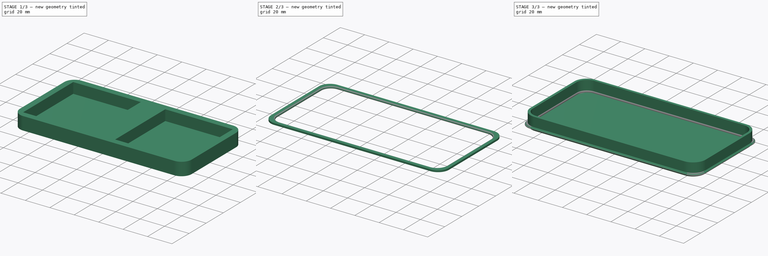
[diagram: build sequence overview — one tinted view per stage of 3, left to right]
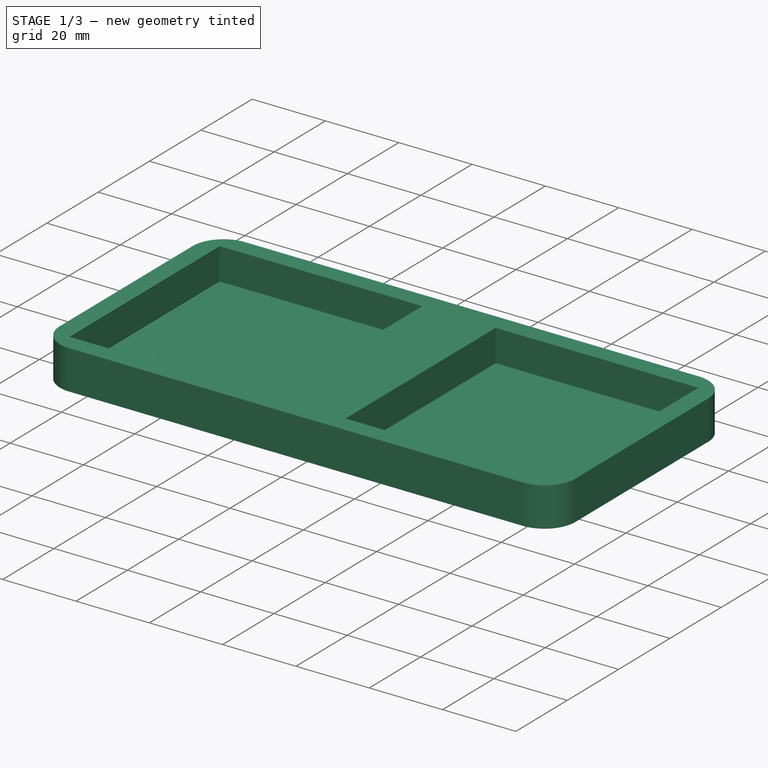
[diagram: stage 1 of 3 — iso view after this stage's code; geometry added in this stage tinted green]
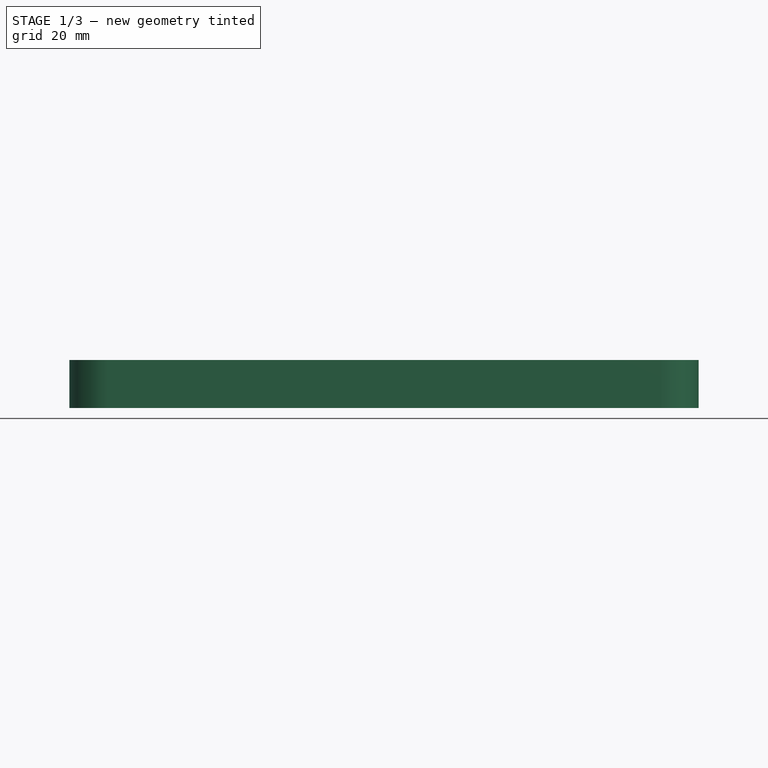
[diagram: stage 1 of 3 — front view after this stage's code; geometry added in this stage tinted green]
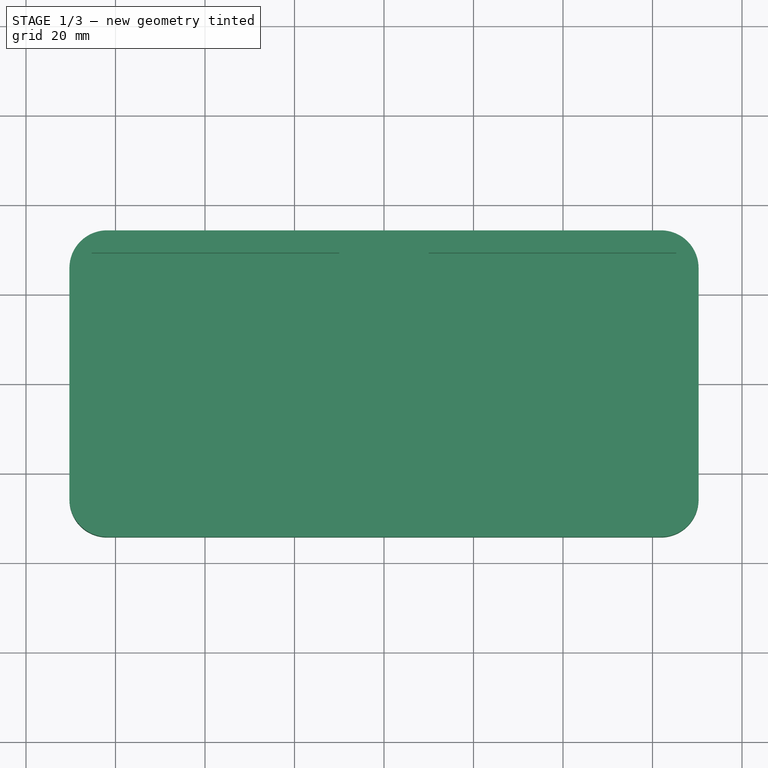
[diagram: stage 1 of 3 — top view after this stage's code; geometry added in this stage tinted green]
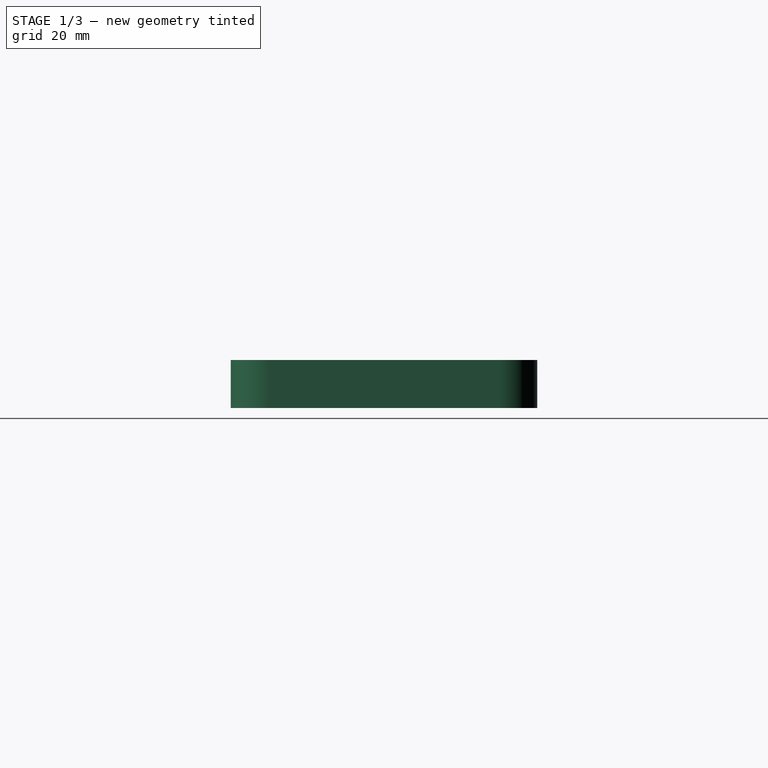
[diagram: stage 1 of 3 — right view after this stage's code; geometry added in this stage tinted green]
FCSTD DOCUMENT  (FreeCAD 0.20R29177 +426 (Git))
Label: phone_case_in_sections
License: Creative Commons Attribution
LicenseURL: http://creativecommons.org/licenses/by/3.0/
objects: Sketcher::SketchObject×4, PartDesign::Pad×3, PartDesign::Body×3, PartDesign::AdditivePipe×1, PartDesign::Fillet×1, PartDesign::Chamfer×1
note: 19 computed .brp shape members not serialized (recipe doc carries the construction recipe); baked Part::Feature solids carry a one-line shape summary decoded from their .brp

FEATURE [Sketcher::SketchObject] Sketch  label="device_support_sketch"
  FullyConstrained = true
  MapMode = 5
  Support = -> [XY_Plane]
  expr: Constraints[37] = .Constraints.device_lip_support
  sketch-geometry (16):
    g0: LineSegment StartX=-61.89 StartY=34.25 StartZ=0 EndX=61.89 EndY=34.25 EndZ=0
    g1: LineSegment StartX=70.3 StartY=25.84 StartZ=0 EndX=70.3 EndY=-25.84 EndZ=0
    g2: LineSegment StartX=61.89 StartY=-34.25 StartZ=0 EndX=-61.89 EndY=-34.25 EndZ=0
    g3: LineSegment StartX=-70.3 StartY=-25.84 StartZ=0 EndX=-70.3 EndY=25.84 EndZ=0
    g4: ArcOfCircle CenterX=-61.89 CenterY=25.84 CenterZ=0 NormalX=0 NormalY=0 NormalZ=1 AngleXU=0 Radius=8.41 StartAngle=1.5708 EndAngle=3.14159
    g5: ArcOfCircle CenterX=61.89 CenterY=25.84 CenterZ=0 NormalX=0 NormalY=0 NormalZ=1 AngleXU=0 Radius=8.41 StartAngle=0 EndAngle=1.5708
    g6: ArcOfCircle CenterX=61.89 CenterY=-25.84 CenterZ=0 NormalX=0 NormalY=0 NormalZ=1 AngleXU=0 Radius=8.41 StartAngle=4.71239 EndAngle=6.28319
    g7: ArcOfCircle CenterX=-61.89 CenterY=-25.84 CenterZ=0 NormalX=0 NormalY=0 NormalZ=1 AngleXU=0 Radius=8.41 StartAngle=3.14159 EndAngle=4.71239
    g8: LineSegment StartX=-65.3 StartY=29.25 StartZ=0 EndX=-10 EndY=29.25 EndZ=0
    g9: LineSegment StartX=-10 StartY=29.25 StartZ=0 EndX=-10 EndY=-29.25 EndZ=0
    g10: LineSegment StartX=-10 StartY=-29.25 StartZ=0 EndX=-65.3 EndY=-29.25 EndZ=0
    g11: LineSegment StartX=-65.3 StartY=-29.25 StartZ=0 EndX=-65.3 EndY=29.25 EndZ=0
    g12: LineSegment StartX=10 StartY=29.25 StartZ=0 EndX=65.3 EndY=29.25 EndZ=0
    g13: LineSegment StartX=65.3 StartY=29.25 StartZ=0 EndX=65.3 EndY=-29.25 EndZ=0
    g14: LineSegment StartX=65.3 StartY=-29.25 StartZ=0 EndX=10 EndY=-29.25 EndZ=0
    g15: LineSegment StartX=10 StartY=-29.25 StartZ=0 EndX=10 EndY=29.25 EndZ=0
  constraints (39):
    c: Horizontal(g0)
    c: Horizontal(g2)
    c: Vertical(g1)
    c: Vertical(g3)
    c: Tangent(g0,g4) = 1.5708
    c: Tangent(g3,g4) = 1.5708
    c: Tangent(g0,g5) = 1.5708
    c: Tangent(g1,g5) = 1.5708
    c: Tangent(g1,g6) = 1.5708
    c: Tangent(g2,g6) = 1.5708
    c: Tangent(g2,g7) = 1.5708
    c: Tangent(g3,g7) = 1.5708
    c: Equal(g0,g2)
    c: Symmetric(g0,g2,g-1)
    c: Symmetric(g3,g1,g-2)
    c: DistanceX(g3,g1) = 140.6  'device_heigth'
    c: Radius(g4) = 8.41  'device_corner_radius'
    c: DistanceY(g2,g0) = 68.5  'device_width'
    c: Coincident(g8,g9)
    c: Coincident(g9,g10)
    c: Coincident(g10,g11)
    c: Coincident(g11,g8)
    c: Horizontal(g8)
    c: Horizontal(g10)
    c: Vertical(g9)
    c: Coincident(g12,g13)
    c: Coincident(g13,g14)
    c: Coincident(g14,g15)
    c: Coincident(g15,g12)
    c: Horizontal(g12)
    c: Horizontal(g14)
    c: Vertical(g15)
    c: Equal(g8,g12)
    c: Symmetric(g8,g10,g-1)
    c: Symmetric(g12,g13,g-1)
    c: Symmetric(g8,g12,g-2)
    c: DistanceX(g3,g10) = 5  'device_lip_support'
    c: DistanceY(g2,g10) = 5
    c: DistanceX(g8,g12) = 20  'device_center_support'
FEATURE [PartDesign::Pad] Pad  label="device_support_pad"
  Direction = (0,0,1)
  Length = 8.7
  Length2 = 10
  Profile = -> Sketch
  ReferenceAxis = -> Sketch [N_Axis]
  Type = 0
FEATURE [PartDesign::Body] Body  label="device_support"
  Group = -> [Sketch,Pad]
  Origin = -> Origin
  Tip = -> Pad
FEATURE [Sketcher::SketchObject] Sketch001  label="case_base_sketch"
  FullyConstrained = true
  MapMode = 5
  Support = -> [XY_Plane001]
  expr: Constraints[12] = <<device_support_sketch>>.Constraints.device_corner_radius
  expr: Constraints[16] = <<device_support_sketch>>.Constraints.device_heigth
  expr: Constraints[17] = <<device_support_sketch>>.Constraints.device_width
  sketch-geometry (8):
    g0: LineSegment StartX=-61.89 StartY=34.25 StartZ=0 EndX=61.89 EndY=34.25 EndZ=0
    g1: LineSegment StartX=70.3 StartY=25.84 StartZ=0 EndX=70.3 EndY=-25.84 EndZ=0
    g2: LineSegment StartX=61.89 StartY=-34.25 StartZ=0 EndX=-61.89 EndY=-34.25 EndZ=0
    g3: LineSegment StartX=-70.3 StartY=-25.84 StartZ=0 EndX=-70.3 EndY=25.84 EndZ=0
    g4: ArcOfCircle CenterX=-61.89 CenterY=25.84 CenterZ=0 NormalX=0 NormalY=0 NormalZ=1 AngleXU=0 Radius=8.41 StartAngle=1.5708 EndAngle=3.14159
    g5: ArcOfCircle CenterX=61.89 CenterY=25.84 CenterZ=0 NormalX=0 NormalY=0 NormalZ=1 AngleXU=0 Radius=8.41 StartAngle=0 EndAngle=1.5708
    g6: ArcOfCircle CenterX=61.89 CenterY=-25.84 CenterZ=0 NormalX=0 NormalY=0 NormalZ=1 AngleXU=0 Radius=8.41 StartAngle=4.71239 EndAngle=6.28319
    g7: ArcOfCircle CenterX=-61.89 CenterY=-25.84 CenterZ=0 NormalX=0 NormalY=0 NormalZ=1 AngleXU=0 Radius=8.41 StartAngle=3.14159 EndAngle=4.71239
  constraints (18):
    c: Horizontal(g0)
    c: Horizontal(g2)
    c: Vertical(g1)
    c: Vertical(g3)
    c: Tangent(g0,g4) = 1.5708
    c: Tangent(g3,g4) = 1.5708
    c: Tangent(g0,g5) = 1.5708
    c: Tangent(g1,g5) = 1.5708
    c: Tangent(g1,g6) = 1.5708
    c: Tangent(g2,g6) = 1.5708
    c: Tangent(g2,g7) = 1.5708
    c: Tangent(g3,g7) = 1.5708
    c: Radius(g4) = 8.41
    c: Equal(g6,g7)
    c: Symmetric(g1,g3,g-2)
    c: Symmetric(g0,g2,g-1)
    c: DistanceX(g3,g1) = 140.6
    c: DistanceY(g2,g0) = 68.5
FEATURE [PartDesign::Pad] Pad001  label="case_base_pad"
  Direction = (0,0,1)
  Length = 2
  Length2 = 10
  Profile = -> Sketch001
  ReferenceAxis = -> Sketch001 [N_Axis]
  Reversed = true
  Type = 0
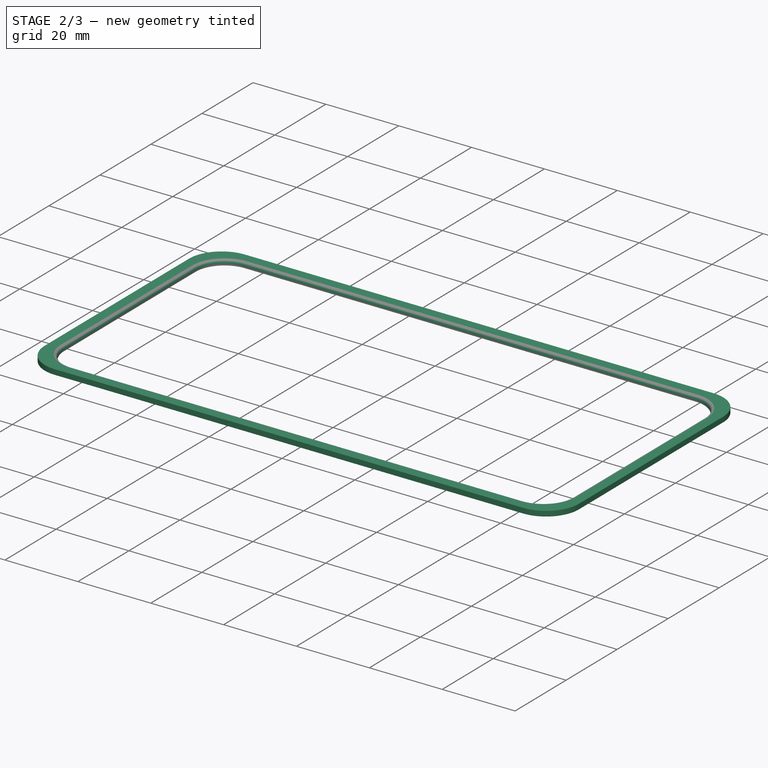
[diagram: stage 2 of 3 — iso view after this stage's code; geometry added in this stage tinted green]
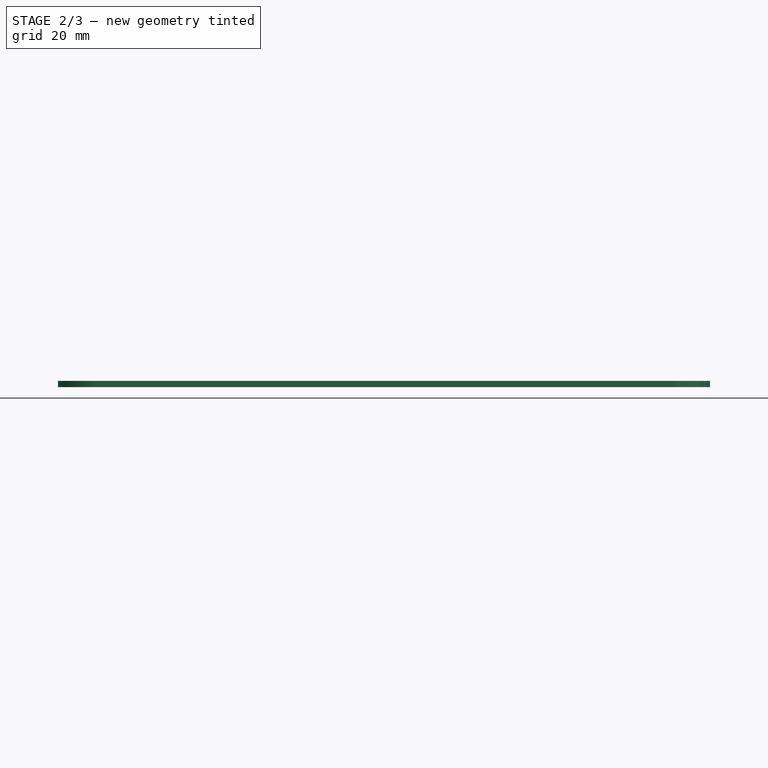
[diagram: stage 2 of 3 — front view after this stage's code; geometry added in this stage tinted green]
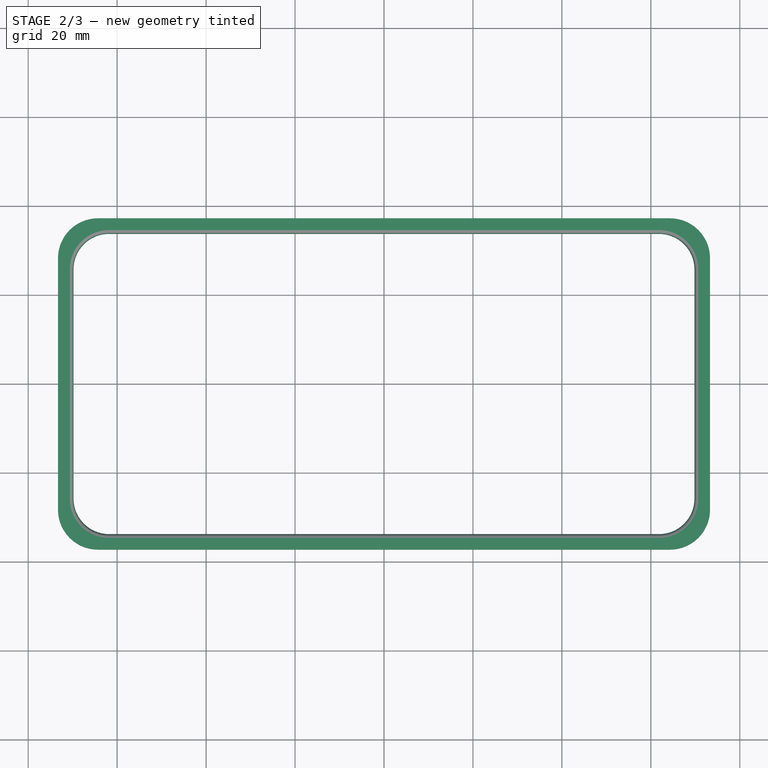
[diagram: stage 2 of 3 — top view after this stage's code; geometry added in this stage tinted green]
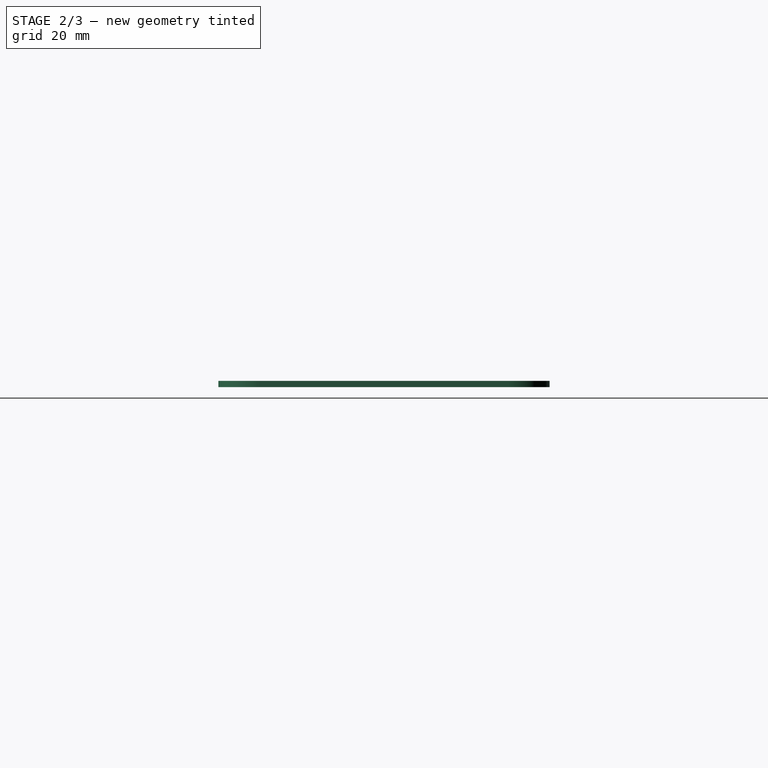
[diagram: stage 2 of 3 — right view after this stage's code; geometry added in this stage tinted green]
FEATURE [PartDesign::Body] Body001  label="case"
  Group = -> [Sketch001,Pad001,Sketch002,AdditivePipe]
  Origin = -> Origin001
  Tip = -> AdditivePipe
FEATURE [Sketcher::SketchObject] Sketch003  label="case_lip_sketch"
  FullyConstrained = true
  MapMode = 5
  Support = -> [XY_Plane002]
  expr: .Constraints.case_side_thickness = <<case_edge_sketch>>.Constraints.case_side_thickness
  expr: .Constraints.device_corner_radius = <<device_support_sketch>>.Constraints.device_corner_radius
  expr: .Constraints.device_height = <<device_support_sketch>>.Constraints.device_heigth + <<case_edge_sketch>>.Constraints.case_side_thickness
  expr: .Constraints.device_width = <<device_support_sketch>>.Constraints.device_width + <<case_edge_sketch>>.Constraints.case_side_thickness
  expr: Constraints[33] = .Constraints.case_lip
  expr: Constraints[34] = .Constraints.case_lip
  expr: Constraints[36] = .Constraints.case_lip
  expr: Constraints[52] = .Constraints.case_side_thickness
  expr: Constraints[53] = .Constraints.case_side_thickness
  expr: Constraints[54] = .Constraints.case_side_thickness
  sketch-geometry (24):
    g0: LineSegment StartX=-62.89 StartY=35.25 StartZ=0 EndX=62.89 EndY=35.25 EndZ=0
    g1: LineSegment StartX=71.3 StartY=26.84 StartZ=0 EndX=71.3 EndY=-26.84 EndZ=0
    g2: LineSegment StartX=62.89 StartY=-35.25 StartZ=0 EndX=-62.89 EndY=-35.25 EndZ=0
    g3: LineSegment StartX=-71.3 StartY=-26.84 StartZ=0 EndX=-71.3 EndY=26.84 EndZ=0
    g4: ArcOfCircle CenterX=-62.89 CenterY=26.84 CenterZ=0 NormalX=0 NormalY=0 NormalZ=1 AngleXU=0 Radius=8.41 StartAngle=1.5708 EndAngle=3.14159
    g5: ArcOfCircle CenterX=62.89 CenterY=26.84 CenterZ=0 NormalX=0 NormalY=0 NormalZ=1 AngleXU=0 Radius=8.41 StartAngle=0 EndAngle=1.5708
    g6: ArcOfCircle CenterX=62.89 CenterY=-26.84 CenterZ=0 NormalX=0 NormalY=0 NormalZ=1 AngleXU=0 Radius=8.41 StartAngle=4.71239 EndAngle=6.28319
    g7: ArcOfCircle CenterX=-62.89 CenterY=-26.84 CenterZ=0 NormalX=0 NormalY=0 NormalZ=1 AngleXU=0 Radius=8.41 StartAngle=3.14159 EndAngle=4.71239
    g8: LineSegment StartX=-61.8293 StartY=33.75 StartZ=0 EndX=61.8293 EndY=33.75 EndZ=0
    g9: LineSegment StartX=69.8 StartY=25.7793 StartZ=0 EndX=69.8 EndY=-25.7793 EndZ=0
    g10: LineSegment StartX=61.8293 StartY=-33.75 StartZ=0 EndX=-61.8293 EndY=-33.75 EndZ=0
    g11: LineSegment StartX=-69.8 StartY=-25.7793 StartZ=0 EndX=-69.8 EndY=25.7793 EndZ=0
    g12: ArcOfCircle CenterX=-61.8293 CenterY=25.7793 CenterZ=0 NormalX=0 NormalY=0 NormalZ=1 AngleXU=0 Radius=7.97066 StartAngle=1.5708 EndAngle=3.14159
    g13: ArcOfCircle CenterX=61.8293 CenterY=25.7793 CenterZ=0 NormalX=0 NormalY=0 NormalZ=1 AngleXU=0 Radius=7.97066 StartAngle=0 EndAngle=1.5708
    g14: ArcOfCircle CenterX=61.8293 CenterY=-25.7793 CenterZ=0 NormalX=0 NormalY=0 NormalZ=1 AngleXU=0 Radius=7.97066 StartAngle=4.71239 EndAngle=6.28319
    g15: ArcOfCircle CenterX=-61.8293 CenterY=-25.7793 CenterZ=0 NormalX=0 NormalY=0 NormalZ=1 AngleXU=0 Radius=7.97066 StartAngle=3.14159 EndAngle=4.71239
    g16: LineSegment StartX=-64.3042 StartY=37.25 StartZ=0 EndX=64.3042 EndY=37.25 EndZ=0
    g17: LineSegment StartX=73.3 StartY=28.2542 StartZ=0 EndX=73.3 EndY=-28.2542 EndZ=0
    g18: LineSegment StartX=64.3042 StartY=-37.25 StartZ=0 EndX=-64.3042 EndY=-37.25 EndZ=0
    g19: LineSegment StartX=-73.3 StartY=-28.2542 StartZ=0 EndX=-73.3 EndY=28.2542 EndZ=0
    g20: ArcOfCircle CenterX=-64.3042 CenterY=28.2542 CenterZ=0 NormalX=0 NormalY=0 NormalZ=1 AngleXU=0 Radius=8.99579 StartAngle=1.5708 EndAngle=3.14159
    g21: ArcOfCircle CenterX=64.3042 CenterY=28.2542 CenterZ=0 NormalX=0 NormalY=0 NormalZ=1 AngleXU=0 Radius=8.99579 StartAngle=0 EndAngle=1.5708
    g22: ArcOfCircle CenterX=64.3042 CenterY=-28.2542 CenterZ=0 NormalX=0 NormalY=0 NormalZ=1 AngleXU=0 Radius=8.99579 StartAngle=4.71239 EndAngle=6.28319
    g23: ArcOfCircle CenterX=-64.3042 CenterY=-28.2542 CenterZ=0 NormalX=0 NormalY=0 NormalZ=1 AngleXU=0 Radius=8.99579 StartAngle=3.14159 EndAngle=4.71239
  constraints (56):
    c: Horizontal(g2)
    c: Vertical(g1)
    c: Vertical(g3)
    c: Tangent(g0,g4) = 1.5708
    c: Tangent(g3,g4) = 1.5708
    c: Tangent(g0,g5) = 1.5708
    c: Tangent(g1,g5) = 1.5708
    c: Tangent(g1,g6) = 1.5708
    c: Tangent(g2,g6) = 1.5708
    c: Tangent(g2,g7) = 1.5708
    c: Tangent(g3,g7) = 1.5708
    c: Equal(g0,g2)
    c: Equal(g1,g3)
    c: Symmetric(g0,g0,g-2)
    c: Symmetric(g2,g0,g-1)
    c: DistanceX(g3,g1) = 142.6  'device_height'
    c: DistanceY(g2,g0) = 70.5  'device_width'
    c: Radius(g4) = 8.41  'device_corner_radius'
    c: Horizontal(g8)
    c: Horizontal(g10)
    c: Vertical(g9)
    c: Vertical(g11)
    c: Tangent(g8,g12) = 1.5708
    c: Tangent(g11,g12) = 1.5708
    c: Tangent(g8,g13) = 1.5708
    c: Tangent(g9,g13) = 1.5708
    c: Tangent(g9,g14) = 1.5708
    c: Tangent(g10,g14) = 1.5708
    c: Tangent(g10,g15) = 1.5708
    c: Tangent(g11,g15) = 1.5708
    c: Equal(g8,g10)
    c: Equal(g9,g11)
    c: DistanceX(g3,g11) = 1.5  'case_lip'
    c: DistanceY(g8,g0) = 1.5
    c: DistanceY(g2,g10) = 1.5
    c: Symmetric(g15,g14,g-2)  'inner Symetry'
    c: Distance(g4,g12) = 1.5
    c: Horizontal(g16)
    c: Horizontal(g18)
    c: Vertical(g17)
    c: Vertical(g19)
    c: Tangent(g16,g20) = 1.5708
    c: Tangent(g19,g20) = 1.5708
    c: Tangent(g16,g21) = 1.5708
    c: Tangent(g17,g21) = 1.5708
    c: Tangent(g17,g22) = 1.5708
    c: Tangent(g18,g22) = 1.5708
    c: Tangent(g18,g23) = 1.5708
    c: Tangent(g19,g23) = 1.5708
    c: Equal(g16,g18)
    c: Equal(g19,g17)
    c: DistanceX(g19,g3) = 2  'case_side_thickness'
    c: DistanceY(g0,g16) = 2
    c: DistanceY(g18,g2) = 2
    c: Distance(g20,g4) = 2
    c: Symmetric(g22,g23,g-2)  'Outer Symetry'
FEATURE [PartDesign::Pad] Pad002  label="case_lip_pad"
  Direction = (0,0,1)
  Length = 1.4
  Length2 = 10
  Profile = -> Sketch003
  ReferenceAxis = -> Sketch003 [N_Axis]
  Type = 0
FEATURE [PartDesign::Fillet] Fillet  label="case_lip_inner_fillet"
  Base = -> Pad002 [Edge34,Edge31,Edge28,Edge48,Edge46,Edge43,Edge40,Edge37]
  BaseFeature = -> Pad002
  Radius = 1
  SupportTransform = false
  UseAllEdges = false
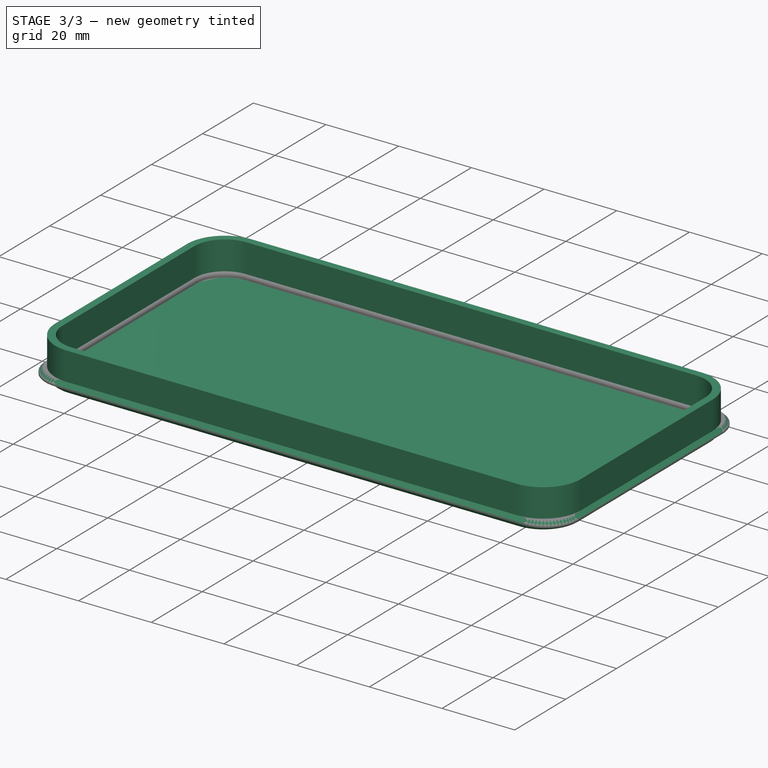
[diagram: stage 3 of 3 — iso view after this stage's code; geometry added in this stage tinted green]
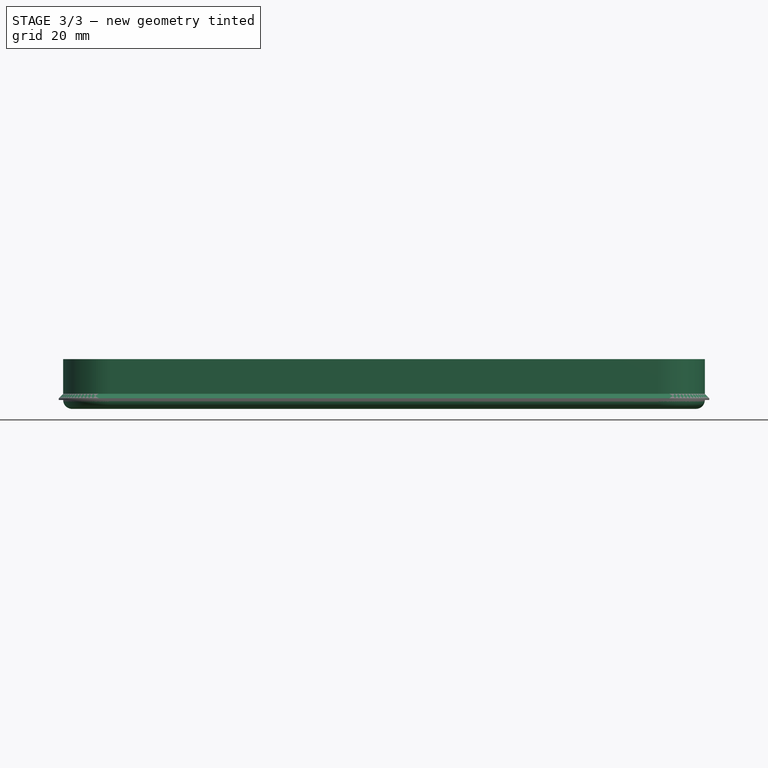
[diagram: stage 3 of 3 — front view after this stage's code; geometry added in this stage tinted green]
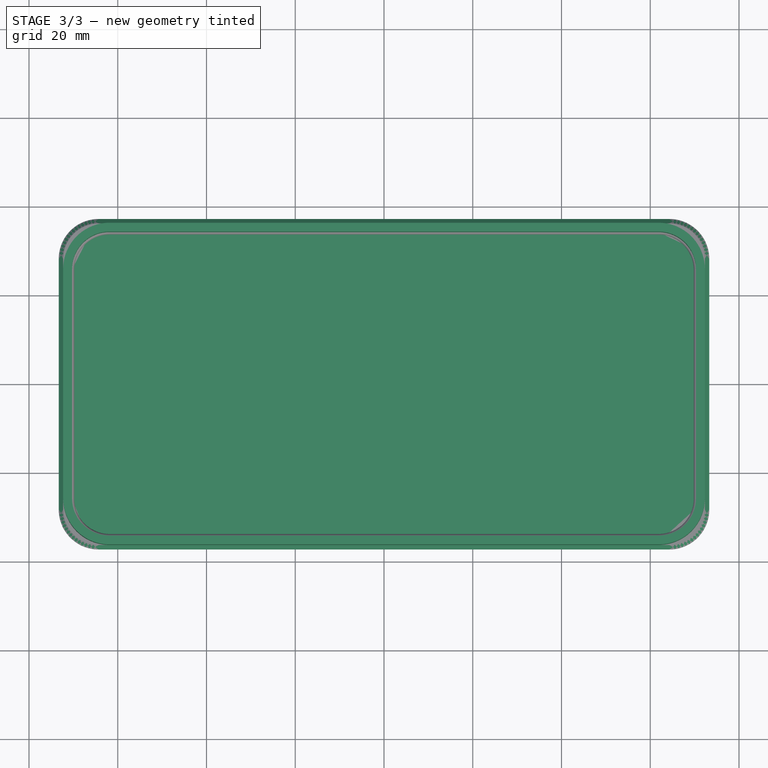
[diagram: stage 3 of 3 — top view after this stage's code; geometry added in this stage tinted green]
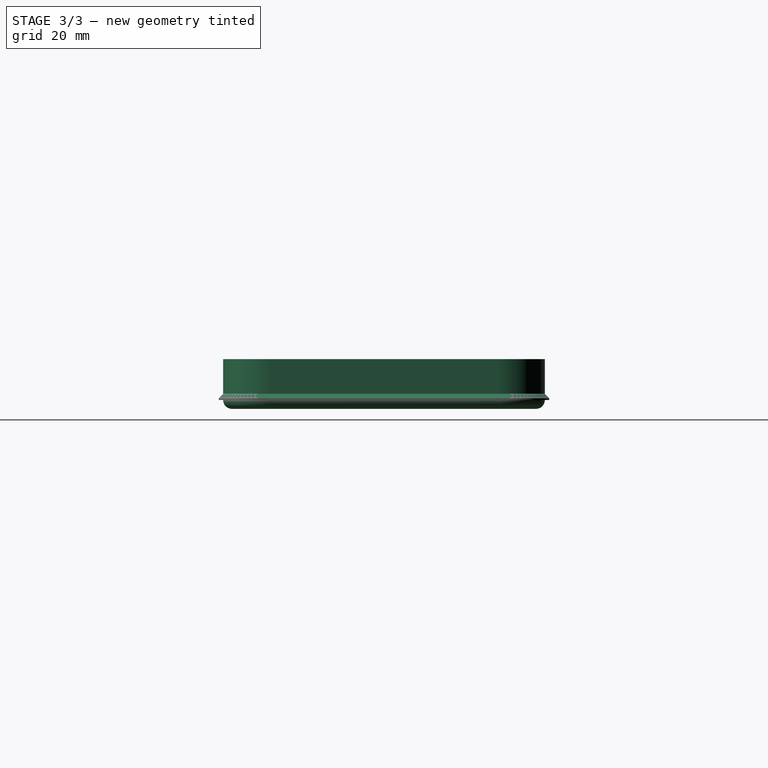
[diagram: stage 3 of 3 — right view after this stage's code; geometry added in this stage tinted green]
FEATURE [Sketcher::SketchObject] Sketch002  label="case_edge_sketch"
  ExternalGeometry = -> [Pad001]
  FullyConstrained = true
  MapMode = 5
  Placement = pos=(0,0,0) rot=(1,0,0;1.5708rad)
  Support = -> [XZ_Plane001]
  expr: .Constraints.case_base_pad_Length = <<case_base_pad>>.Length
  expr: .Constraints.case_side_thickness = .Constraints.case_base_pad_Length
  expr: .Constraints.device_support_pad_Length = <<device_support_pad>>.Length + 0.5mm
  sketch-geometry (5):
    g0: LineSegment StartX=-70.3 StartY=9.2 StartZ=0 EndX=-70.3 EndY=-5.3e-15 EndZ=0
    g1: LineSegment StartX=-70.3 StartY=-5.3e-15 StartZ=0 EndX=-70.3 EndY=-2 EndZ=0
    g2: LineSegment StartX=-70.3 StartY=9.2 StartZ=0 EndX=-72.3 EndY=9.2 EndZ=0
    g3: LineSegment StartX=-72.3 StartY=9.2 StartZ=0 EndX=-72.3 EndY=-9.06e-14 EndZ=0
    g4: ArcOfCircle CenterX=-70.3 CenterY=-9.18e-14 CenterZ=0 NormalX=0 NormalY=0 NormalZ=1 AngleXU=0 Radius=2 StartAngle=3.14159 EndAngle=4.71239
  constraints (15):
    c: Vertical(g0)
    c: Coincident(g1,g0)
    c: Vertical(g1)
    c: DistanceY(g0,g0) = 9.2  'device_support_pad_Length'
    c: DistanceY(g1,g1) = 2  'case_base_pad_Length'
    c: Coincident(g1,g-3)  'base_attachment_point'
    c: Coincident(g2,g0)
    c: Horizontal(g2)
    c: Coincident(g3,g2)
    c: Vertical(g3)
    c: DistanceX(g2,g2) = 2  'case_side_thickness'
    c: Coincident(g4,g1)
    c: Coincident(g3,g4)
    c: Angle(g4) = 1.5708  'case_base_arc'
    c: Equal(g3,g0)  'case_edge_outer_height'
FEATURE [PartDesign::AdditivePipe] AdditivePipe  label="case_edge_pipe"
  AuxilleryCurvelinear = true
  AuxillerySpineTangent = false
  BaseFeature = -> Pad001
  Binormal = (0,0,0)
  Mode = 0
  Profile = -> Sketch002
  Spine = -> Pad001 [Edge23,Edge3,Edge6,Edge9,Edge12,Edge15,Edge18,Edge21]
  SpineTangent = false
  Transformation = 0
  Transition = 0
FEATURE [PartDesign::Chamfer] Chamfer  label="case_lip_outer_chamfer"
  Angle = 45
  Base = -> Fillet [Edge39,Edge40,Edge41,Edge42,Edge43,Edge44,Edge37,Edge38]
  BaseFeature = -> Fillet
  ChamferType = 0
  FlipDirection = false
  Size = 1
  Size2 = 1
  SupportTransform = false
  UseAllEdges = false
FEATURE [PartDesign::Body] Body002  label="case_lip"
  Group = -> [Sketch003,Pad002,Fillet,Chamfer]
  Origin = -> Origin002
  Tip = -> Chamfer
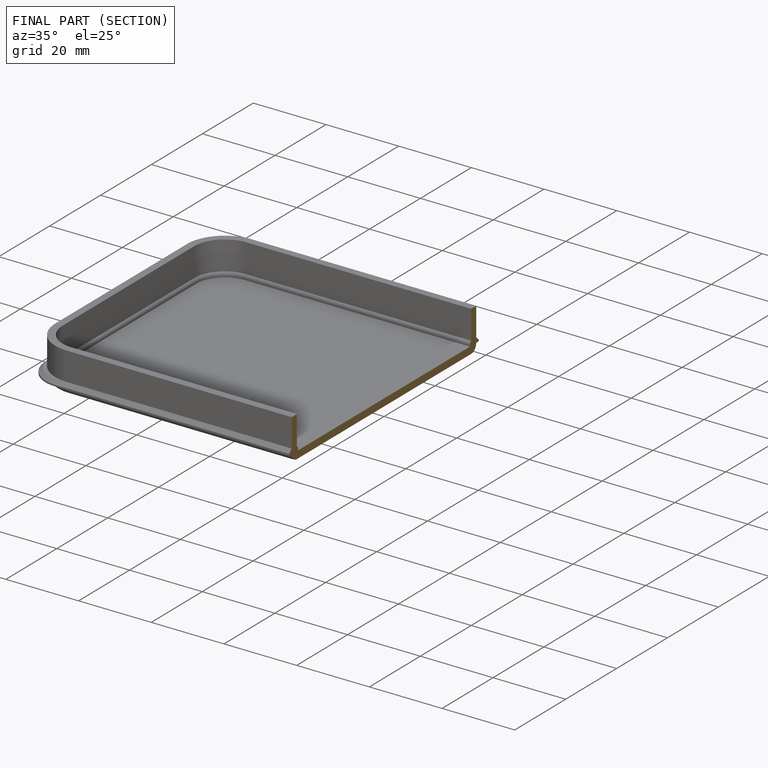
[diagram: finished part — half-section view (interior)]
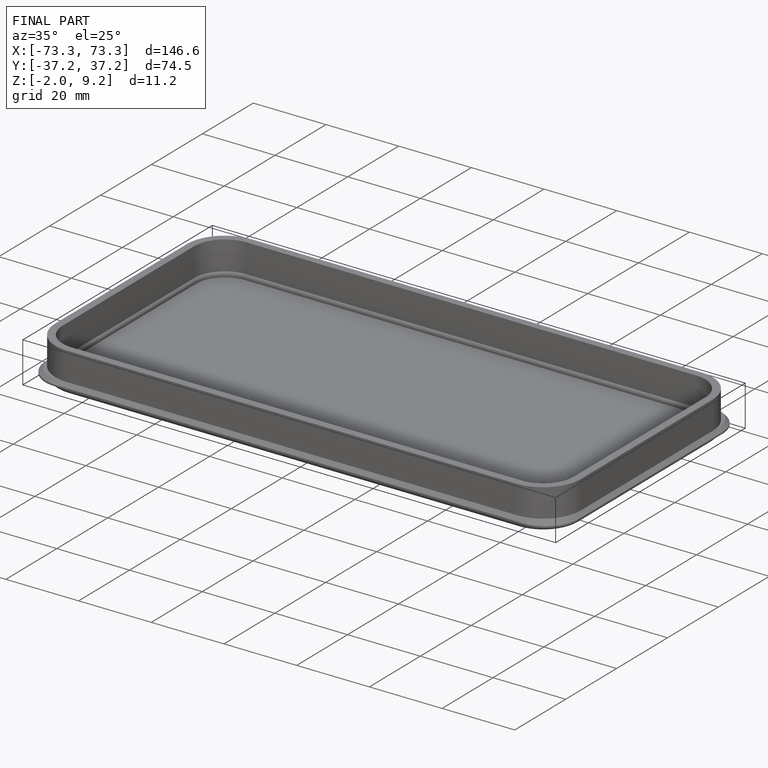
[diagram: finished part — iso view with bounding-box wireframe]
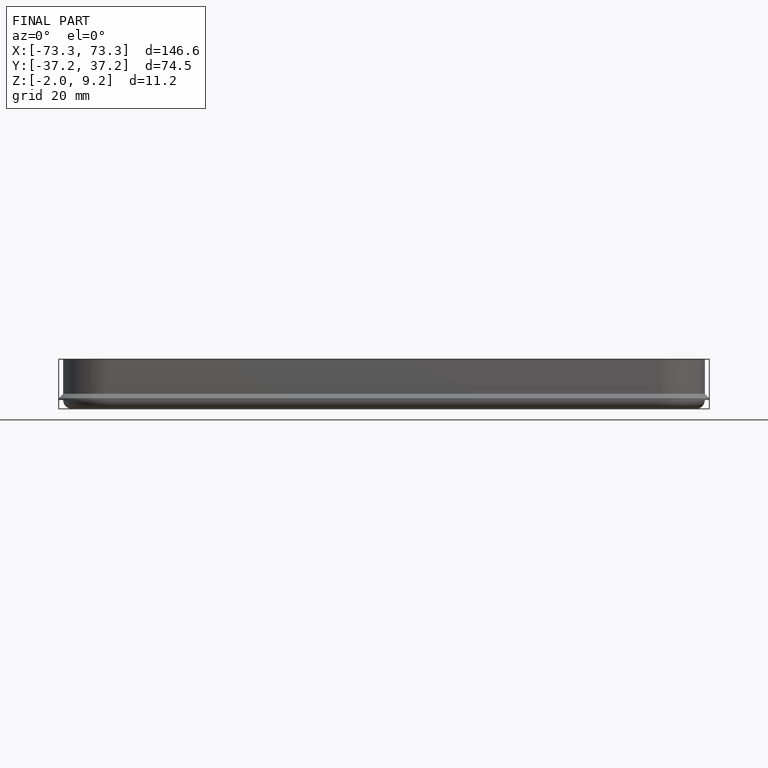
[diagram: finished part — front view with bounding-box wireframe]
